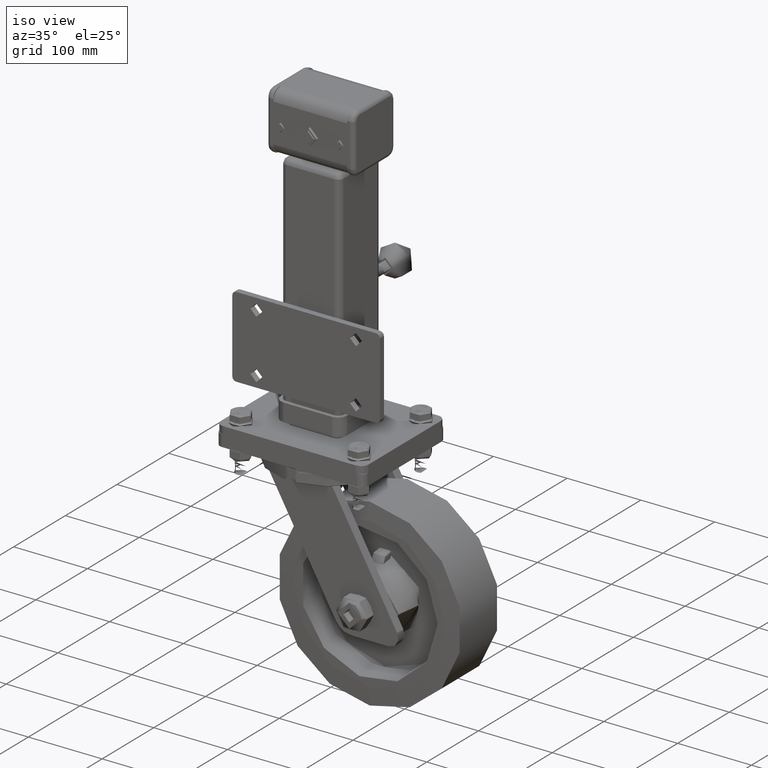
[diagram: clean part render]
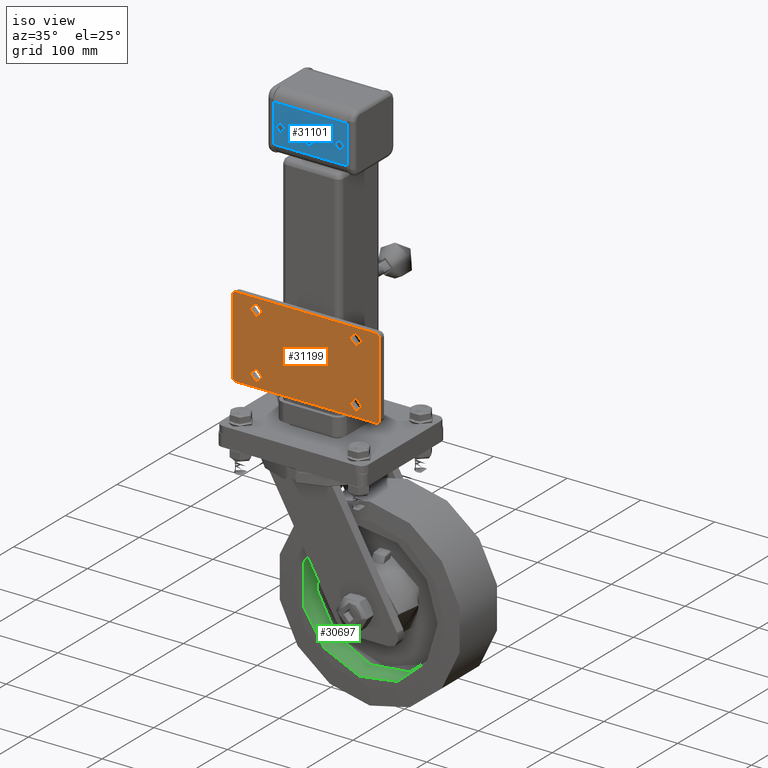
[diagram: same view with three faces highlighted in distinct colors, each labeled with its STEP entity id]
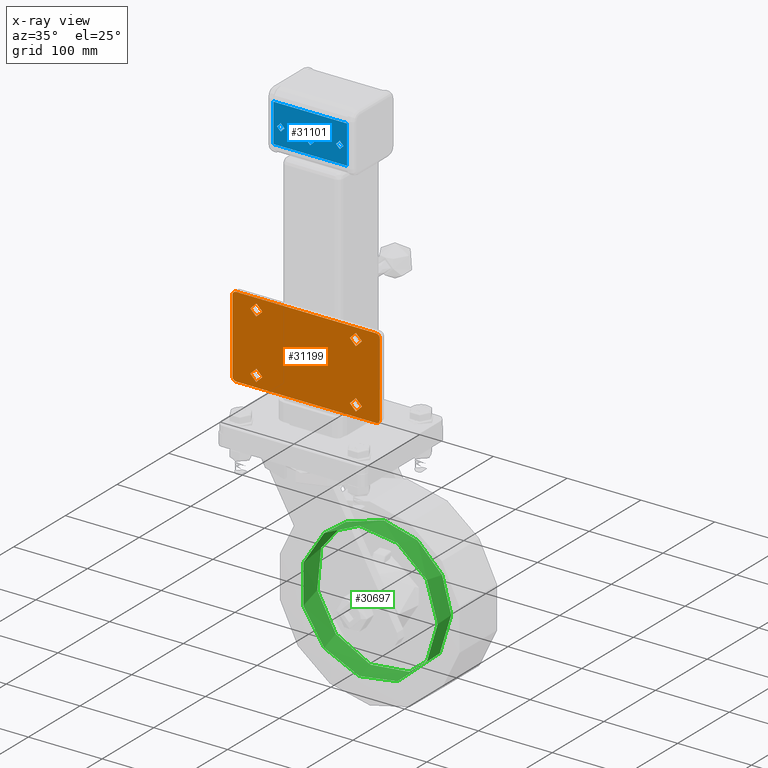
[diagram: x-ray of the same camera — body ghosted, the three highlighted faces saturated]
A machine part, iso view with three faces highlighted in distinct colors.
The next image is the same camera in x-ray (body ghosted, the three faces saturated) — at least one of them is partly hidden behind the body in this view.
Their STEP definitions:

[orange] entity #31199 — the highlighted planar face has unit normal (-0, -1, -0).
#984=FACE_BOUND('',#6471,.T.);
#985=FACE_BOUND('',#6472,.T.);
#986=FACE_BOUND('',#6473,.T.);
#987=FACE_BOUND('',#6474,.T.);
#1372=PLANE('',#34360);
#2816=CIRCLE('',#34334,8.1);
#2818=CIRCLE('',#34337,8.1);
#2820=CIRCLE('',#34340,8.1);
#2822=CIRCLE('',#34343,8.1);
#2823=CIRCLE('',#34346,5.);
#2825=CIRCLE('',#34350,5.);
#2827=CIRCLE('',#34354,5.);
#2829=CIRCLE('',#34358,5.);
#4448=FACE_OUTER_BOUND('',#6470,.T.);
#6470=EDGE_LOOP('',(#24457,#24458,#24459,#24460,#24461,#24462,#24463,#24464));
#6471=EDGE_LOOP('',(#24465));
#6472=EDGE_LOOP('',(#24466));
#6473=EDGE_LOOP('',(#24467));
#6474=EDGE_LOOP('',(#24468));
#9914=LINE('',#64901,#11663);
#9919=LINE('',#64915,#11668);
#9923=LINE('',#64927,#11672);
#9927=LINE('',#64939,#11676);
#11663=VECTOR('',#40008,1000.);
#11668=VECTOR('',#40021,1000.);
#11672=VECTOR('',#40033,1000.);
#11676=VECTOR('',#40045,1000.);
#13895=VERTEX_POINT('',#64877);
#13897=VERTEX_POINT('',#64883);
#13899=VERTEX_POINT('',#64889);
#13901=VERTEX_POINT('',#64895);
#13902=VERTEX_POINT('',#64899);
#13903=VERTEX_POINT('',#64900);
#13906=VERTEX_POINT('',#64908);
#13908=VERTEX_POINT('',#64914);
#13910=VERTEX_POINT('',#64920);
#13912=VERTEX_POINT('',#64926);
#13914=VERTEX_POINT('',#64932);
#13916=VERTEX_POINT('',#64938);
#17614=EDGE_CURVE('',#13895,#13895,#2816,.T.);
#17617=EDGE_CURVE('',#13897,#13897,#2818,.T.);
#17620=EDGE_CURVE('',#13899,#13899,#2820,.T.);
#17623=EDGE_CURVE('',#13901,#13901,#2822,.T.);
#17624=EDGE_CURVE('',#13902,#13903,#9914,.T.);
#17628=EDGE_CURVE('',#13903,#13906,#2823,.T.);
#17631=EDGE_CURVE('',#13906,#13908,#9919,.T.);
#17634=EDGE_CURVE('',#13908,#13910,#2825,.T.);
#17637=EDGE_CURVE('',#13910,#13912,#9923,.T.);
#17640=EDGE_CURVE('',#13912,#13914,#2827,.T.);
#17643=EDGE_CURVE('',#13914,#13916,#9927,.T.);
#17646=EDGE_CURVE('',#13916,#13902,#2829,.T.);
#24457=ORIENTED_EDGE('',*,*,#17624,.F.);
#24458=ORIENTED_EDGE('',*,*,#17646,.F.);
#24459=ORIENTED_EDGE('',*,*,#17643,.F.);
#24460=ORIENTED_EDGE('',*,*,#17640,.F.);
#24461=ORIENTED_EDGE('',*,*,#17637,.F.);
#24462=ORIENTED_EDGE('',*,*,#17634,.F.);
#24463=ORIENTED_EDGE('',*,*,#17631,.F.);
#24464=ORIENTED_EDGE('',*,*,#17628,.F.);
#24465=ORIENTED_EDGE('',*,*,#17614,.F.);
#24466=ORIENTED_EDGE('',*,*,#17617,.F.);
#24467=ORIENTED_EDGE('',*,*,#17620,.F.);
#24468=ORIENTED_EDGE('',*,*,#17623,.F.);
#31199=ADVANCED_FACE('',(#4448,#984,#985,#986,#987),#1372,.T.);
#34334=AXIS2_PLACEMENT_3D('',#64879,#39983,#39984);
#34337=AXIS2_PLACEMENT_3D('',#64885,#39990,#39991);
#34340=AXIS2_PLACEMENT_3D('',#64891,#39997,#39998);
#34343=AXIS2_PLACEMENT_3D('',#64897,#40004,#40005);
#34346=AXIS2_PLACEMENT_3D('',#64909,#40014,#40015);
#34350=AXIS2_PLACEMENT_3D('',#64921,#40026,#40027);
#34354=AXIS2_PLACEMENT_3D('',#64933,#40038,#40039);
#34358=AXIS2_PLACEMENT_3D('',#64944,#40050,#40051);
#34360=AXIS2_PLACEMENT_3D('',#64946,#40054,#40055);
#39983=DIRECTION('center_axis',(0.,-1.,-3.72965547335014E-15));
#39984=DIRECTION('ref_axis',(1.,0.,0.));
#39990=DIRECTION('center_axis',(0.,-1.,-3.72965547335014E-15));
#39991=DIRECTION('ref_axis',(1.,0.,0.));
#39997=DIRECTION('center_axis',(0.,-1.,-3.72965547335014E-15));
#39998=DIRECTION('ref_axis',(1.,0.,0.));
#40004=DIRECTION('center_axis',(0.,-1.,-3.72965547335014E-15));
#40005=DIRECTION('ref_axis',(1.,0.,0.));
#40008=DIRECTION('',(0.,-3.7470027081099E-15,1.));
#40014=DIRECTION('center_axis',(0.,1.,3.78485122031303E-15));
#40015=DIRECTION('ref_axis',(-1.,0.,0.));
#40021=DIRECTION('',(1.,3.65204942310907E-17,0.));
#40026=DIRECTION('center_axis',(-3.46944695195361E-17,1.,3.72965547335013E-15));
#40027=DIRECTION('ref_axis',(1.29398418138517E-31,-3.72965547335013E-15,
1.));
#40033=DIRECTION('',(0.,3.67761376907083E-15,-1.));
#40038=DIRECTION('center_axis',(0.,1.,3.72177036664115E-15));
#40039=DIRECTION('ref_axis',(1.,0.,0.));
#40045=DIRECTION('',(-1.,0.,0.));
#40050=DIRECTION('center_axis',(0.,1.,3.72965547335013E-15));
#40051=DIRECTION('ref_axis',(0.,3.72965547335013E-15,-1.));
#40054=DIRECTION('center_axis',(0.,-1.,-3.72965547335014E-15));
#40055=DIRECTION('ref_axis',(1.,0.,0.));
#64877=CARTESIAN_POINT('',(-75.6,-48.0000000000017,136.));
#64879=CARTESIAN_POINT('Origin',(-67.5,-48.0000000000017,136.));
#64883=CARTESIAN_POINT('',(-75.6,-48.0000000000014,56.));
#64885=CARTESIAN_POINT('Origin',(-67.5,-48.0000000000014,56.));
#64889=CARTESIAN_POINT('',(59.4,-48.0000000000017,136.));
#64891=CARTESIAN_POINT('Origin',(67.5,-48.0000000000017,136.));
#64895=CARTESIAN_POINT('',(59.4,-48.0000000000014,55.9999999999999));
#64897=CARTESIAN_POINT('Origin',(67.5,-48.0000000000014,55.9999999999999));
#64899=CARTESIAN_POINT('',(-100.,-48.0000000000001,46.));
#64900=CARTESIAN_POINT('',(-100.,-48.0000000000005,146.));
#64901=CARTESIAN_POINT('',(-100.,-48.0000000000014,46.));
#64908=CARTESIAN_POINT('',(-95.,-48.0000000000005,151.));
#64909=CARTESIAN_POINT('Origin',(-95.,-48.0000000000017,146.));
#64914=CARTESIAN_POINT('',(95.,-48.0000000000005,151.));
#64915=CARTESIAN_POINT('',(-95.,-48.0000000000018,151.));
#64920=CARTESIAN_POINT('',(100.,-48.0000000000005,146.));
#64921=CARTESIAN_POINT('Origin',(95.,-48.0000000000017,146.));
#64926=CARTESIAN_POINT('',(100.,-48.0000000000001,46.));
#64927=CARTESIAN_POINT('',(100.,-48.0000000000017,146.));
#64932=CARTESIAN_POINT('',(95.,-48.0000000000001,41.));
#64933=CARTESIAN_POINT('Origin',(95.,-48.0000000000014,46.));
#64938=CARTESIAN_POINT('',(-95.,-48.0000000000001,41.));
#64939=CARTESIAN_POINT('',(95.,-48.0000000000013,41.));
#64944=CARTESIAN_POINT('Origin',(-95.,-48.0000000000014,46.));
#64946=CARTESIAN_POINT('Origin',(6.93889390390723E-15,-48.0000000000006,
163.5));

[blue] entity #31101 — the highlighted planar face has unit normal (-0, -1, 0).
#972=FACE_BOUND('',#6361,.T.);
#973=FACE_BOUND('',#6362,.T.);
#974=FACE_BOUND('',#6363,.T.);
#1331=PLANE('',#34154);
#2712=CIRCLE('',#34124,11.05);
#2713=CIRCLE('',#34126,5.00000000000001);
#2717=CIRCLE('',#34132,5.);
#4350=FACE_OUTER_BOUND('',#6360,.T.);
#6360=EDGE_LOOP('',(#24048,#24049,#24050,#24051));
#6361=EDGE_LOOP('',(#24052));
#6362=EDGE_LOOP('',(#24053));
#6363=EDGE_LOOP('',(#24054));
#9790=LINE('',#64383,#11539);
#9791=LINE('',#64389,#11540);
#9816=LINE('',#64476,#11565);
#9825=LINE('',#64497,#11574);
#11539=VECTOR('',#39414,1000.);
#11540=VECTOR('',#39419,1000.);
#11565=VECTOR('',#39502,1000.);
#11574=VECTOR('',#39527,1000.);
#13741=VERTEX_POINT('',#64376);
#13744=VERTEX_POINT('',#64381);
#13746=VERTEX_POINT('',#64386);
#13747=VERTEX_POINT('',#64388);
#13760=VERTEX_POINT('',#64420);
#13761=VERTEX_POINT('',#64424);
#13765=VERTEX_POINT('',#64436);
#17380=EDGE_CURVE('',#13744,#13741,#9790,.T.);
#17382=EDGE_CURVE('',#13746,#13747,#9791,.T.);
#17398=EDGE_CURVE('',#13760,#13760,#2712,.T.);
#17399=EDGE_CURVE('',#13761,#13761,#2713,.T.);
#17405=EDGE_CURVE('',#13765,#13765,#2717,.T.);
#17424=EDGE_CURVE('',#13744,#13747,#9816,.T.);
#17438=EDGE_CURVE('',#13746,#13741,#9825,.T.);
#24048=ORIENTED_EDGE('',*,*,#17382,.F.);
#24049=ORIENTED_EDGE('',*,*,#17438,.T.);
#24050=ORIENTED_EDGE('',*,*,#17380,.F.);
#24051=ORIENTED_EDGE('',*,*,#17424,.T.);
#24052=ORIENTED_EDGE('',*,*,#17405,.T.);
#24053=ORIENTED_EDGE('',*,*,#17399,.T.);
#24054=ORIENTED_EDGE('',*,*,#17398,.T.);
#31101=ADVANCED_FACE('',(#4350,#972,#973,#974),#1331,.T.);
#34124=AXIS2_PLACEMENT_3D('',#64422,#39451,#39452);
#34126=AXIS2_PLACEMENT_3D('',#64425,#39455,#39456);
#34132=AXIS2_PLACEMENT_3D('',#64437,#39469,#39470);
#34154=AXIS2_PLACEMENT_3D('',#64504,#39539,#39540);
#39414=DIRECTION('',(-1.,0.,0.));
#39419=DIRECTION('',(1.,0.,0.));
#39451=DIRECTION('center_axis',(0.,1.,0.));
#39452=DIRECTION('ref_axis',(-1.,0.,0.));
#39455=DIRECTION('center_axis',(0.,1.,0.));
#39456=DIRECTION('ref_axis',(1.,0.,0.));
#39469=DIRECTION('center_axis',(0.,1.,0.));
#39470=DIRECTION('ref_axis',(1.,0.,0.));
#39502=DIRECTION('',(0.,0.,1.));
#39527=DIRECTION('',(0.,0.,-1.));
#39539=DIRECTION('center_axis',(0.,-1.,0.));
#39540=DIRECTION('ref_axis',(0.,0.,1.));
#64376=CARTESIAN_POINT('',(-50.,-40.0000000000012,341.));
#64381=CARTESIAN_POINT('',(50.,-40.0000000000012,341.));
#64383=CARTESIAN_POINT('',(0.,-40.0000000000012,341.));
#64386=CARTESIAN_POINT('',(-50.,-40.0000000000012,393.));
#64388=CARTESIAN_POINT('',(50.,-40.0000000000012,393.));
#64389=CARTESIAN_POINT('',(0.,-40.0000000000012,393.));
#64420=CARTESIAN_POINT('',(11.05,-40.0000000000012,364.));
#64422=CARTESIAN_POINT('Origin',(1.21808216724945E-14,-40.0000000000012,
364.));
#64424=CARTESIAN_POINT('',(-45.,-40.0000000000012,364.));
#64425=CARTESIAN_POINT('Origin',(-40.,-40.0000000000012,364.));
#64436=CARTESIAN_POINT('',(35.,-40.0000000000012,364.));
#64437=CARTESIAN_POINT('Origin',(40.,-40.0000000000012,364.));
#64476=CARTESIAN_POINT('',(50.,-40.0000000000012,327.));
#64497=CARTESIAN_POINT('',(-50.,-40.0000000000012,327.));
#64504=CARTESIAN_POINT('Origin',(0.,-40.0000000000012,367.));

[green] entity #30697 — the highlighted conical surface has half-angle 2.77 deg.
#627=CONICAL_SURFACE('',#33453,92.319072782558,0.0483493866519025);
#2396=CIRCLE('',#33454,91.638145565116);
#2397=CIRCLE('',#33455,91.638145565116);
#2398=CIRCLE('',#33456,93.);
#3946=FACE_OUTER_BOUND('',#5886,.T.);
#5886=EDGE_LOOP('',(#21924,#21925,#21926,#21927,#21928));
#9380=LINE('',#60193,#11129);
#11129=VECTOR('',#37696,92.319072782558);
#13082=VERTEX_POINT('',#60188);
#13083=VERTEX_POINT('',#60189);
#13084=VERTEX_POINT('',#60192);
#16372=EDGE_CURVE('',#13082,#13083,#2396,.T.);
#16373=EDGE_CURVE('',#13083,#13082,#2397,.T.);
#16374=EDGE_CURVE('',#13082,#13084,#9380,.T.);
#16375=EDGE_CURVE('',#13084,#13084,#2398,.T.);
#21924=ORIENTED_EDGE('',*,*,#16372,.T.);
#21925=ORIENTED_EDGE('',*,*,#16373,.T.);
#21926=ORIENTED_EDGE('',*,*,#16374,.T.);
#21927=ORIENTED_EDGE('',*,*,#16375,.F.);
#21928=ORIENTED_EDGE('',*,*,#16374,.F.);
#30697=ADVANCED_FACE('',(#3946),#627,.F.);
#33453=AXIS2_PLACEMENT_3D('',#60187,#37690,#37691);
#33454=AXIS2_PLACEMENT_3D('',#60190,#37692,#37693);
#33455=AXIS2_PLACEMENT_3D('',#60191,#37694,#37695);
#33456=AXIS2_PLACEMENT_3D('',#60194,#37697,#37698);
#37690=DIRECTION('center_axis',(3.49148336110938E-15,-1.,0.));
#37691=DIRECTION('ref_axis',(-1.,-3.49148336110938E-15,0.));
#37692=DIRECTION('center_axis',(-3.49148336110938E-15,1.,0.));
#37693=DIRECTION('ref_axis',(-1.,-3.49148336110938E-15,0.));
#37694=DIRECTION('center_axis',(-3.49148336110938E-15,1.,0.));
#37695=DIRECTION('ref_axis',(-1.,-3.49148336110938E-15,0.));
#37696=DIRECTION('',(0.0483305514233257,-0.998831396082,5.91878551015981E-18));
#37697=DIRECTION('center_axis',(-3.49148336110938E-15,1.,0.));
#37698=DIRECTION('ref_axis',(-1.,-3.49148336110938E-15,0.));
#60187=CARTESIAN_POINT('Origin',(7.48578471079716E-14,-23.427504172865,
0.));
#60188=CARTESIAN_POINT('',(91.638145565116,-9.35500834572971,1.12224361646119E-14));
#60189=CARTESIAN_POINT('',(3.69463982428605E-14,-9.35500834573003,91.638145565116));
#60190=CARTESIAN_POINT('Origin',(2.57239620782486E-14,-9.35500834573003,
0.));
#60191=CARTESIAN_POINT('Origin',(2.57239620782486E-14,-9.35500834573003,
0.));
#60192=CARTESIAN_POINT('',(93.0000000000001,-37.4999999999997,1.13892152320704E-14));
#60193=CARTESIAN_POINT('',(92.3190727825581,-23.4275041728647,1.13058256983411E-14));
#60194=CARTESIAN_POINT('Origin',(1.23991732137695E-13,-37.5,0.));